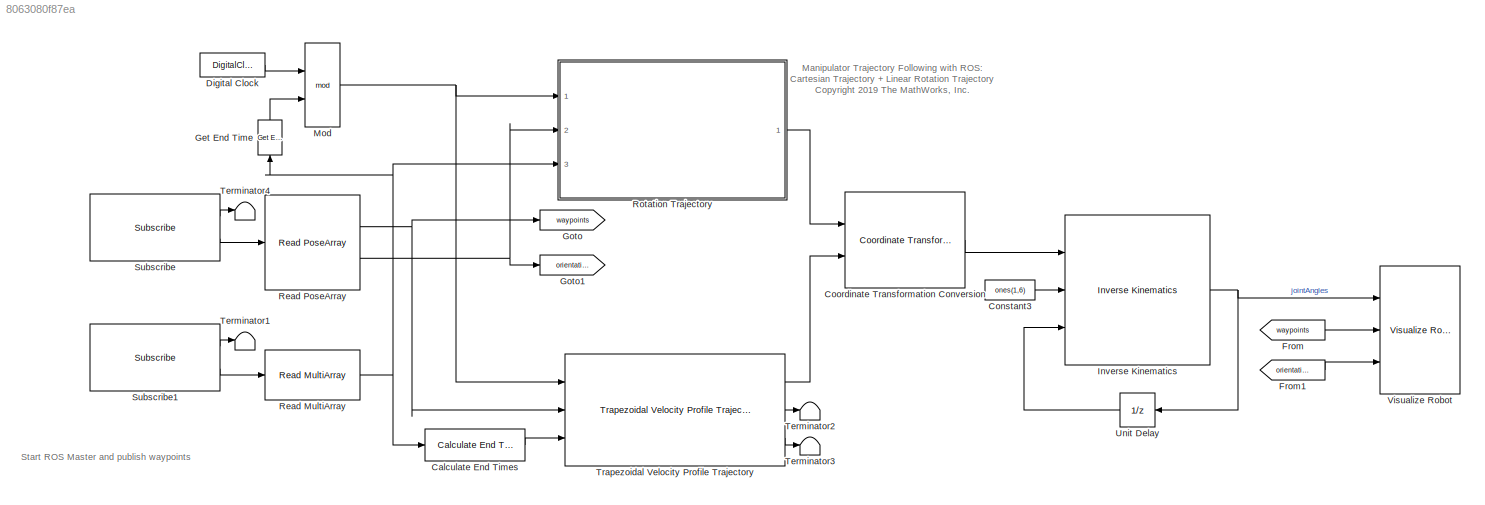
MODEL slx_8063080f87ea
KIND model
CONFIG AbsTol = auto
CONFIG EnableMultiTasking = off
CONFIG FixedStep = auto
CONFIG MaxStep = auto
CONFIG MinStep = auto
CONFIG PreLoadFcn = createWaypointData;
CONFIG RelTol = 1e-3
CONFIG SampleTimeConstraint = Unconstrained
CONFIG Solver = FixedStepAuto
CONFIG SolverName = FixedStepAuto
CONFIG StartTime = 0.0
CONFIG StopTime = inf
BLOCK [Reference] Calculate End Times  REF=trajExampleUtils/Calculate End Times
  Ports = [1, 1]
  SourceBlock = trajExampleUtils/Calculate End Times
  SourceProductBaseCode = SL
  SourceProductName = Simulink
  SourceType = Calculate End Times
BLOCK [Constant] Constant3
  Value = ones(1,6)
  VectorParams1D = off
BLOCK [Reference] Coordinate Transformation Conversion  REF=robotcorelib/Coordinate Transformation Conversion
  Ports = [2, 1]
  SourceBlock = robotcorelib/Coordinate Transformation Conversion
  SourceProductBaseCode = RO
  SourceProductName = Robotics System Toolbox
  SourceType = robotics.slcore.internal.block.CoordinateTransformationConversion
BLOCK [DigitalClock] Digital Clock
  SampleTime = ts
BLOCK [From] From
  GotoTag = waypoints
BLOCK [From] From1
  GotoTag = orientations
BLOCK [Reference] Get End Time  REF=trajExampleUtils/Get End Time
  Ports = [1, 1]
  SourceBlock = trajExampleUtils/Get End Time
  SourceProductBaseCode = SL
  SourceProductName = Simulink
  SourceType = Get End Time
BLOCK [Goto] Goto
  GotoTag = waypoints
BLOCK [Goto] Goto1
  GotoTag = orientations
BLOCK [Reference] Inverse Kinematics  REF=robotmaniplib/Inverse Kinematics
  Ports = [3, 1]
  SourceBlock = robotmaniplib/Inverse Kinematics
  SourceProductBaseCode = RO
  SourceProductName = Robotics System Toolbox
  SourceType = Inverse Kinematics
BLOCK [Math] Mod
  Operator = mod
  Ports = [2, 1]
BLOCK [Reference] Read MultiArray  REF=trajExampleUtils/Read MultiArray
  Ports = [1, 1]
  SourceBlock = trajExampleUtils/Read MultiArray
  SourceProductBaseCode = SL
  SourceProductName = Simulink
  SourceType = Read MultiArray
BLOCK [Reference] Read PoseArray  REF=trajExampleUtils/Read PoseArray
  Ports = [1, 2]
  SourceBlock = trajExampleUtils/Read PoseArray
  SourceType = Read PoseArray
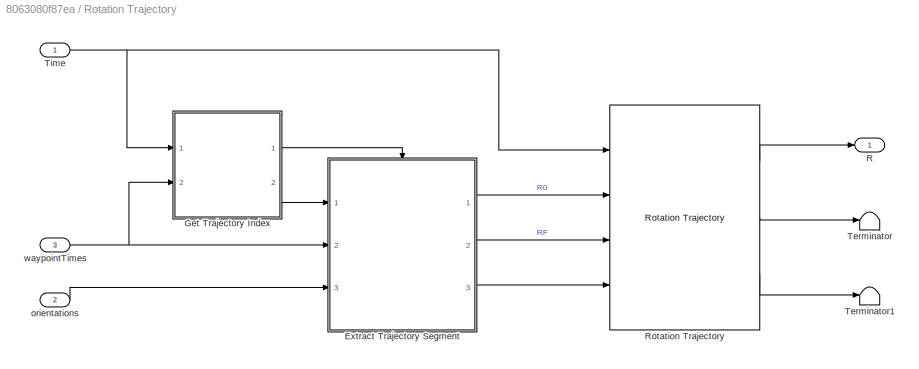
BLOCK [SubSystem] Rotation Trajectory
  Ports = [3, 1]
  RequestExecContextInheritance = off
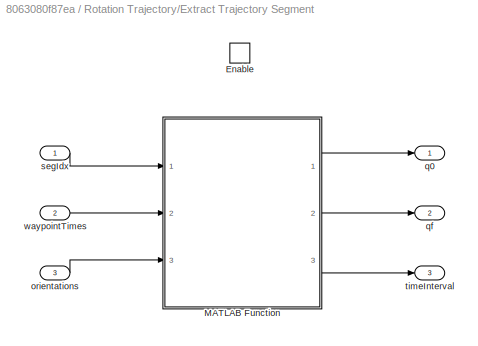
BLOCK [SubSystem] Rotation Trajectory/Extract Trajectory Segment
  Ports = [3, 3, 1]
  RequestExecContextInheritance = off
BLOCK [EnablePort] Rotation Trajectory/Extract Trajectory Segment/Enable
  Ports = []
  PropagateVarSize = During execution
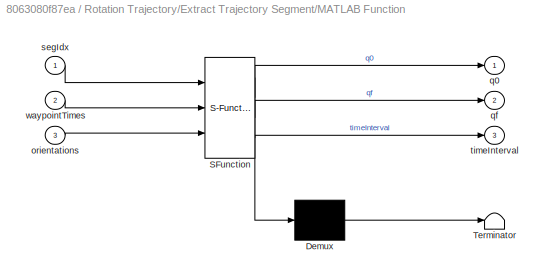
BLOCK [SubSystem] Rotation Trajectory/Extract Trajectory Segment/MATLAB Function
  ErrorFcn = Stateflow.Translate.translate
  PermitHierarchicalResolution = ExplicitOnly
  Ports = [3, 3]
  RequestExecContextInheritance = off
  SFBlockType = MATLAB Function
  TreatAsAtomicUnit = on
BLOCK [Demux] Rotation Trajectory/Extract Trajectory Segment/MATLAB Function/ Demux 
  Outputs = 1
  Ports = [1, 1]
BLOCK [S-Function] Rotation Trajectory/Extract Trajectory Segment/MATLAB Function/ SFunction 
  EnableBusSupport = on
  FunctionName = sf_sfun
  PortCounts = [3 4]
  Ports = [3, 4]
  SFcnIsStateOwnerBlock = off
  SFunctionDeploymentMode = off
  Tag = Stateflow S-Function rosManipRotationTrajectory 7
BLOCK [Terminator] Rotation Trajectory/Extract Trajectory Segment/MATLAB Function/ Terminator 
BLOCK [Inport] Rotation Trajectory/Extract Trajectory Segment/MATLAB Function/orientations
  IconDisplay = Port number
  Port = 3
BLOCK [Outport] Rotation Trajectory/Extract Trajectory Segment/MATLAB Function/q0
  IconDisplay = Port number
BLOCK [Outport] Rotation Trajectory/Extract Trajectory Segment/MATLAB Function/qf
  IconDisplay = Port number
  Port = 2
BLOCK [Inport] Rotation Trajectory/Extract Trajectory Segment/MATLAB Function/segIdx
  IconDisplay = Port number
BLOCK [Outport] Rotation Trajectory/Extract Trajectory Segment/MATLAB Function/timeInterval
  IconDisplay = Port number
  Port = 3
BLOCK [Inport] Rotation Trajectory/Extract Trajectory Segment/MATLAB Function/waypointTimes
  IconDisplay = Port number
  Port = 2
BLOCK [Inport] Rotation Trajectory/Extract Trajectory Segment/orientations
  IconDisplay = Port number
  Port = 3
BLOCK [Outport] Rotation Trajectory/Extract Trajectory Segment/q0
  IconDisplay = Port number
BLOCK [Outport] Rotation Trajectory/Extract Trajectory Segment/qf
  IconDisplay = Port number
  Port = 2
BLOCK [Inport] Rotation Trajectory/Extract Trajectory Segment/segIdx
  IconDisplay = Port number
BLOCK [Outport] Rotation Trajectory/Extract Trajectory Segment/timeInterval
  IconDisplay = Port number
  Port = 3
BLOCK [Inport] Rotation Trajectory/Extract Trajectory Segment/waypointTimes
  IconDisplay = Port number
  Port = 2
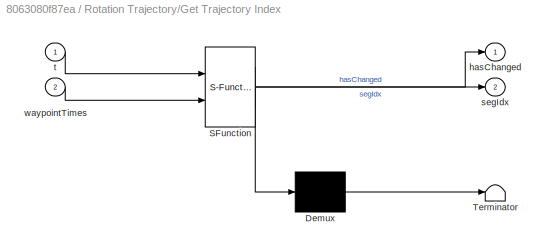
BLOCK [SubSystem] Rotation Trajectory/Get Trajectory Index
  ErrorFcn = Stateflow.Translate.translate
  PermitHierarchicalResolution = ExplicitOnly
  Ports = [2, 2]
  RequestExecContextInheritance = off
  SFBlockType = MATLAB Function
  TreatAsAtomicUnit = on
BLOCK [Demux] Rotation Trajectory/Get Trajectory Index/ Demux 
  Outputs = 1
  Ports = [1, 1]
BLOCK [S-Function] Rotation Trajectory/Get Trajectory Index/ SFunction 
  EnableBusSupport = on
  FunctionName = sf_sfun
  PortCounts = [2 3]
  Ports = [2, 3]
  SFcnIsStateOwnerBlock = off
  SFunctionDeploymentMode = off
  Tag = Stateflow S-Function rosManipRotationTrajectory 6
BLOCK [Terminator] Rotation Trajectory/Get Trajectory Index/ Terminator 
BLOCK [Outport] Rotation Trajectory/Get Trajectory Index/hasChanged
  IconDisplay = Port number
BLOCK [Outport] Rotation Trajectory/Get Trajectory Index/segIdx
  IconDisplay = Port number
  Port = 2
BLOCK [Inport] Rotation Trajectory/Get Trajectory Index/t
  IconDisplay = Port number
BLOCK [Inport] Rotation Trajectory/Get Trajectory Index/waypointTimes
  IconDisplay = Port number
  Port = 2
BLOCK [Outport] Rotation Trajectory/R
  IconDisplay = Port number
BLOCK [Reference] Rotation Trajectory/Rotation Trajectory  REF=robotcorelib/Rotation Trajectory
  Ports = [4, 3]
  SourceBlock = robotcorelib/Rotation Trajectory
  SourceProductBaseCode = RO
  SourceProductName = Robotics System Toolbox
  SourceType = robotics.slcore.internal.block.RotTrajSys
BLOCK [Terminator] Rotation Trajectory/Terminator
BLOCK [Terminator] Rotation Trajectory/Terminator1
BLOCK [Inport] Rotation Trajectory/Time
  IconDisplay = Port number
BLOCK [Inport] Rotation Trajectory/orientations
  IconDisplay = Port number
  Port = 2
BLOCK [Inport] Rotation Trajectory/waypointTimes
  IconDisplay = Port number
  Port = 3
BLOCK [Reference] Subscribe  REF=robotlib/Subscribe
  Ports = [0, 2]
  SourceBlock = robotlib/Subscribe
  SourceProductBaseCode = RO
  SourceProductName = Robotics System Toolbox
  SourceType = ROS Subscribe
BLOCK [Reference] Subscribe1  REF=robotlib/Subscribe
  Ports = [0, 2]
  SourceBlock = robotlib/Subscribe
  SourceProductBaseCode = RO
  SourceProductName = Robotics System Toolbox
  SourceType = ROS Subscribe
BLOCK [Terminator] Terminator1
BLOCK [Terminator] Terminator2
BLOCK [Terminator] Terminator3
BLOCK [Terminator] Terminator4
BLOCK [Reference] Trapezoidal Velocity Profile Trajectory  REF=robotcorelib/Trapezoidal Velocity Profile Trajectory
  Ports = [3, 3]
  SourceBlock = robotcorelib/Trapezoidal Velocity Profile Trajectory
  SourceProductBaseCode = RO
  SourceProductName = Robotics System Toolbox
  SourceType = robotics.slcore.internal.block.TrapVelTrajSys
BLOCK [UnitDelay] Unit Delay
  HasFrameUpgradeWarning = on
  InitialCondition = ikInitGuess'
  SampleTime = -1
BLOCK [Reference] Visualize Robot  REF=trajExampleUtils/Visualize Robot
  Ports = [3]
  SourceBlock = trajExampleUtils/Visualize Robot
  SourceType = Visualize Robot
ANNOTATION (root): Start ROS Master and publish waypoints
ANNOTATION (root): Manipulator Trajectory Following with ROS: Cartesian Trajectory + Linear Rotation Trajectory <copyright redacted>
LINE Calculate End Times:1 -> Trapezoidal Velocity Profile Trajectory:3
LINE Constant3:1 -> Inverse Kinematics:2
LINE Coordinate Transformation Conversion:1 -> Inverse Kinematics:1
LINE Digital Clock:1 -> Mod:1
LINE From1:1 -> Visualize Robot:3
LINE From:1 -> Visualize Robot:2
LINE Get End Time:1 -> Mod:2
NET Inverse Kinematics:1 -> Unit Delay:1, Visualize Robot:1
NET Mod:1 -> Rotation Trajectory:1, Trapezoidal Velocity Profile Trajectory:1
NET Read MultiArray:1 -> Calculate End Times:1, Get End Time:1, Rotation Trajectory:3
NET Read PoseArray:1 -> Goto:1, Trapezoidal Velocity Profile Trajectory:2
NET Read PoseArray:2 -> Goto1:1, Rotation Trajectory:2
LINE Rotation Trajectory/Extract Trajectory Segment/MATLAB Function:1 -> Rotation Trajectory/Extract Trajectory Segment/q0:1
LINE Rotation Trajectory/Extract Trajectory Segment/MATLAB Function:2 -> Rotation Trajectory/Extract Trajectory Segment/qf:1
LINE Rotation Trajectory/Extract Trajectory Segment/MATLAB Function:3 -> Rotation Trajectory/Extract Trajectory Segment/timeInterval:1
LINE Rotation Trajectory/Extract Trajectory Segment/orientations:1 -> Rotation Trajectory/Extract Trajectory Segment/MATLAB Function:3
LINE Rotation Trajectory/Extract Trajectory Segment/segIdx:1 -> Rotation Trajectory/Extract Trajectory Segment/MATLAB Function:1
LINE Rotation Trajectory/Extract Trajectory Segment/waypointTimes:1 -> Rotation Trajectory/Extract Trajectory Segment/MATLAB Function:2
LINE Rotation Trajectory/Extract Trajectory Segment:1 -> Rotation Trajectory/Rotation Trajectory:2
LINE Rotation Trajectory/Extract Trajectory Segment:2 -> Rotation Trajectory/Rotation Trajectory:3
LINE Rotation Trajectory/Extract Trajectory Segment:3 -> Rotation Trajectory/Rotation Trajectory:4
LINE Rotation Trajectory/Get Trajectory Index:1 -> Rotation Trajectory/Extract Trajectory Segment:enable
LINE Rotation Trajectory/Get Trajectory Index:2 -> Rotation Trajectory/Extract Trajectory Segment:1
LINE Rotation Trajectory/Rotation Trajectory:1 -> Rotation Trajectory/R:1
LINE Rotation Trajectory/Rotation Trajectory:2 -> Rotation Trajectory/Terminator:1
LINE Rotation Trajectory/Rotation Trajectory:3 -> Rotation Trajectory/Terminator1:1
NET Rotation Trajectory/Time:1 -> Rotation Trajectory/Get Trajectory Index:1, Rotation Trajectory/Rotation Trajectory:1
LINE Rotation Trajectory/orientations:1 -> Rotation Trajectory/Extract Trajectory Segment:3
NET Rotation Trajectory/waypointTimes:1 -> Rotation Trajectory/Extract Trajectory Segment:2, Rotation Trajectory/Get Trajectory Index:2
LINE Rotation Trajectory:1 -> Coordinate Transformation Conversion:1
LINE Subscribe1:1 -> Terminator1:1
LINE Subscribe1:2 -> Read MultiArray:1
LINE Subscribe:1 -> Terminator4:1
LINE Subscribe:2 -> Read PoseArray:1
LINE Trapezoidal Velocity Profile Trajectory:1 -> Coordinate Transformation Conversion:2
LINE Trapezoidal Velocity Profile Trajectory:2 -> Terminator2:1
LINE Trapezoidal Velocity Profile Trajectory:3 -> Terminator3:1
LINE Unit Delay:1 -> Inverse Kinematics:3
note: NET lines group one-source signal fan-out (src -> all destinations, sorted); 1:1 wires keep LINE
CHART Rotation Trajectory/Get Trajectory Index states=1 transitions=1
  STATE_LABEL 'eML_blk_kernel()'
  STATE_LABEL 'SCRIPT:\nfunction [hasChanged,segIdx] = getTrajIdx(t,waypointTimes)\n\n% Initialize previous index\npersistent prevIdx\nif isempty(prevIdx)\n    prevIdx = 0;\nend\n\n% Find the trajectory segment index\nsegIndices = find(t>=waypointTimes);\n\n% Limit the index value to the number of times minus one\n% (This addresses the final time case)\nsegIdx = min(segIndices(end),numel(waypointTimes)-1);\n\n% Determine whethe...<+157ch>'
CHART Rotation Trajectory/Extract Trajectory Segment/MATLAB Function states=1 transitions=1
  STATE_LABEL 'eML_blk_kernel()'
  STATE_LABEL "SCRIPT:\nfunction [q0, qf, timeInterval] = createRotationTrajSegment(segIdx,waypointTimes,orientations)\n\n% Extract the time interval, initial, and final quaternions for the segment\ntimeInterval = waypointTimes(segIdx:segIdx+1);\nq0 = eul2quat(orientations(:,segIdx)');\nqf = eul2quat(orientations(:,segIdx+1)');\n\nend\n\n"
